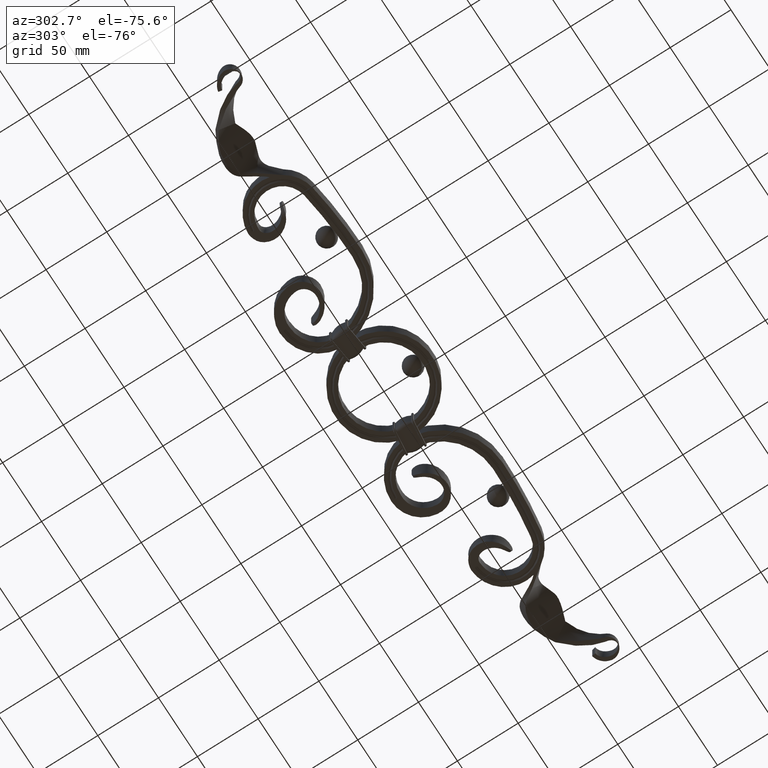
[diagram: clean part render]
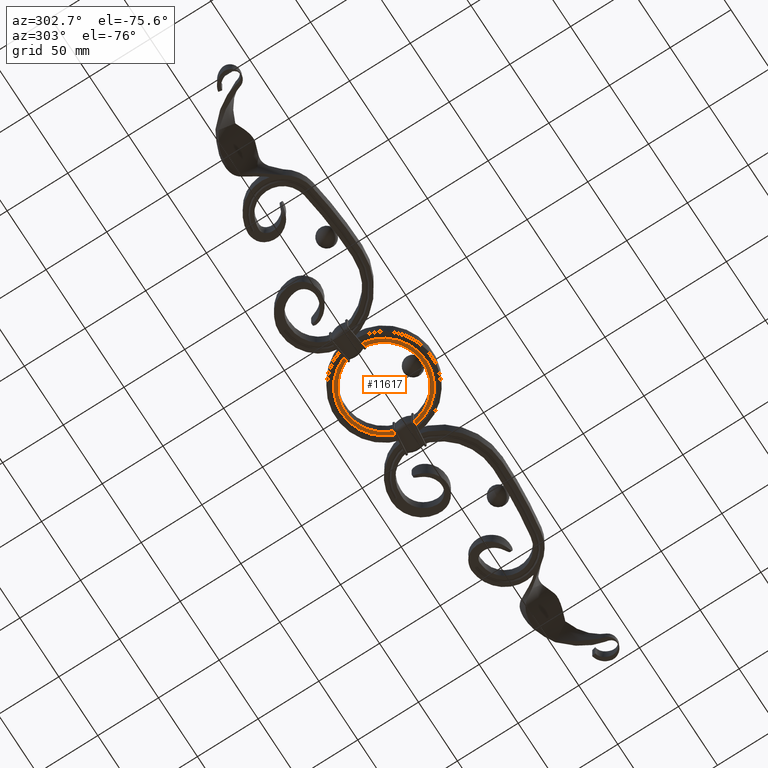
[diagram: same view with one face highlighted and labeled with its STEP entity id]
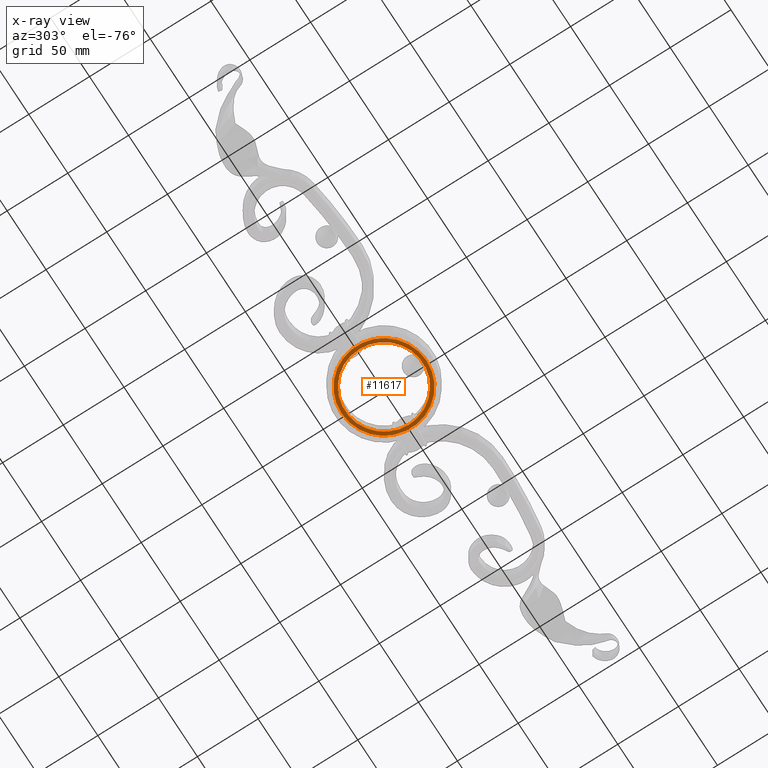
[diagram: x-ray of the same camera — body ghosted, the highlighted face saturated]
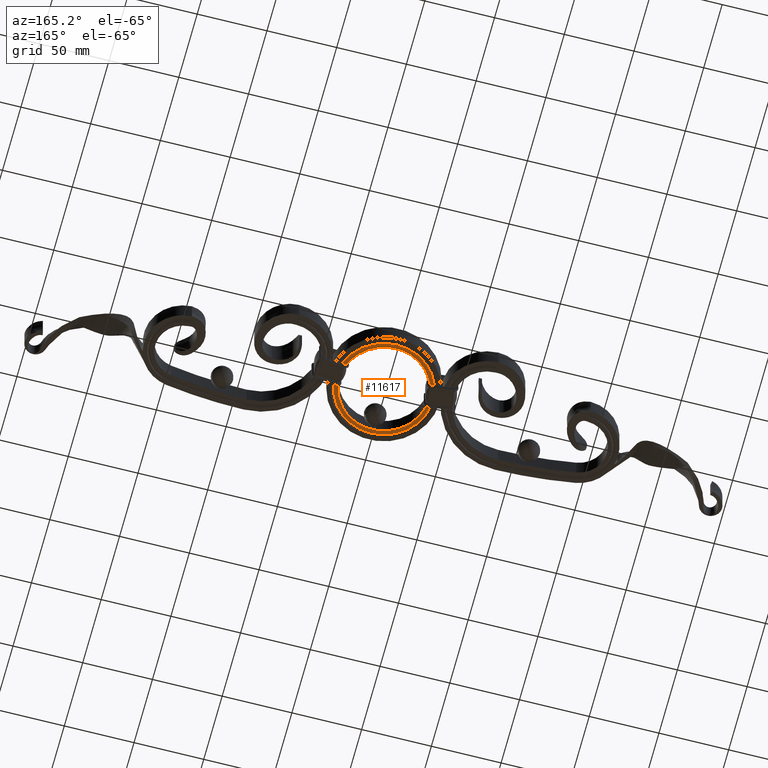
[diagram: same view with one face highlighted and labeled with its STEP entity id]
A machine part, auxiliary view. The second image highlights one B-rep face of the part: STEP entity #11617.
The next image is the same camera in x-ray: the body ghosted, the highlighted face saturated — about 0% of this face is hidden behind the body in this view.
A second angle (auxiliary view) of the same face is appended — the face is thin or edge-on in the first view.
In plain terms, the highlighted planar face has unit normal (0, 0, 1).
Its self-contained STEP definition (entity closure, byte-faithful):
#1705 = DIRECTION ( 'NONE',  ( -0.000000000000000000, -0.000000000000000000, 1.000000000000000000 ) ) ;
#1977 = DIRECTION ( 'NONE',  ( 1.000000000000000000, 0.000000000000000000, 0.000000000000000000 ) ) ;
#3545 = CARTESIAN_POINT ( 'NONE',  ( 0.000000000000000000, 0.000000000000000000, -8.000000000000000000 ) ) ;
#5125 = VERTEX_POINT ( 'NONE', #6487 ) ;
#5339 = PLANE ( 'NONE',  #17062 ) ;
#6487 = CARTESIAN_POINT ( 'NONE',  ( 0.000000000000000000, -35.00000000000000000, -8.000000000000000000 ) ) ;
#7316 = DIRECTION ( 'NONE',  ( 0.000000000000000000, 0.000000000000000000, 1.000000000000000000 ) ) ;
#7696 = CARTESIAN_POINT ( 'NONE',  ( 0.000000000000000000, 0.000000000000000000, -8.000000000000000000 ) ) ;
#8299 = CARTESIAN_POINT ( 'NONE',  ( 32.00000000000000000, 0.000000000000000000, -8.000000000000000000 ) ) ;
#10688 = EDGE_LOOP ( 'NONE', ( #11927 ) ) ;
#10804 = EDGE_CURVE ( 'NONE', #5125, #5125, #23275, .T. ) ;
#11617 = ADVANCED_FACE ( 'NONE', ( #11799, #17614 ), #5339, .F. ) ;
#11660 = CARTESIAN_POINT ( 'NONE',  ( 0.000000000000000000, 0.000000000000000000, -8.000000000000000000 ) ) ;
#11745 = DIRECTION ( 'NONE',  ( 0.000000000000000000, 0.000000000000000000, 1.000000000000000000 ) ) ;
#11799 = FACE_BOUND ( 'NONE', #21361, .T. ) ;
#11927 = ORIENTED_EDGE ( 'NONE', *, *, #10804, .F. ) ;
#13414 = AXIS2_PLACEMENT_3D ( 'NONE', #7696, #1705, #23489 ) ;
#14834 = EDGE_CURVE ( 'NONE', #15588, #15588, #19690, .T. ) ;
#15437 = ORIENTED_EDGE ( 'NONE', *, *, #14834, .T. ) ;
#15588 = VERTEX_POINT ( 'NONE', #8299 ) ;
#17062 = AXIS2_PLACEMENT_3D ( 'NONE', #3545, #7316, #19234 ) ;
#17614 = FACE_OUTER_BOUND ( 'NONE', #10688, .T. ) ;
#18737 = AXIS2_PLACEMENT_3D ( 'NONE', #11660, #11745, #1977 ) ;
#19234 = DIRECTION ( 'NONE',  ( 1.000000000000000000, 0.000000000000000000, -0.000000000000000000 ) ) ;
#19690 = CIRCLE ( 'NONE', #18737, 32.00000000000000000 ) ;
#21361 = EDGE_LOOP ( 'NONE', ( #15437 ) ) ;
#23275 = CIRCLE ( 'NONE', #13414, 35.00000000000000000 ) ;
#23489 = DIRECTION ( 'NONE',  ( 0.000000000000000000, -1.000000000000000000, 0.000000000000000000 ) ) ;